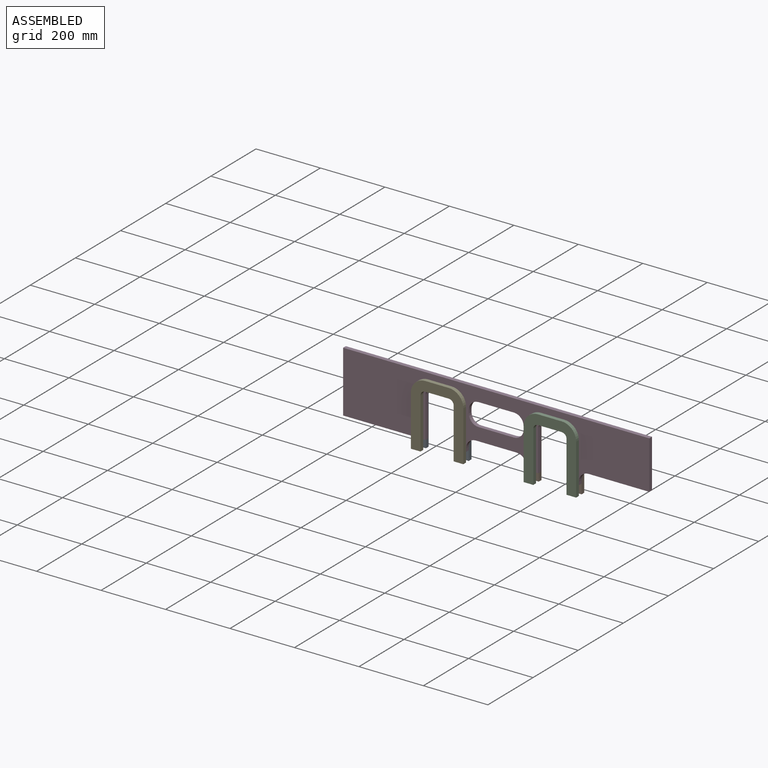
[diagram: assembled view]
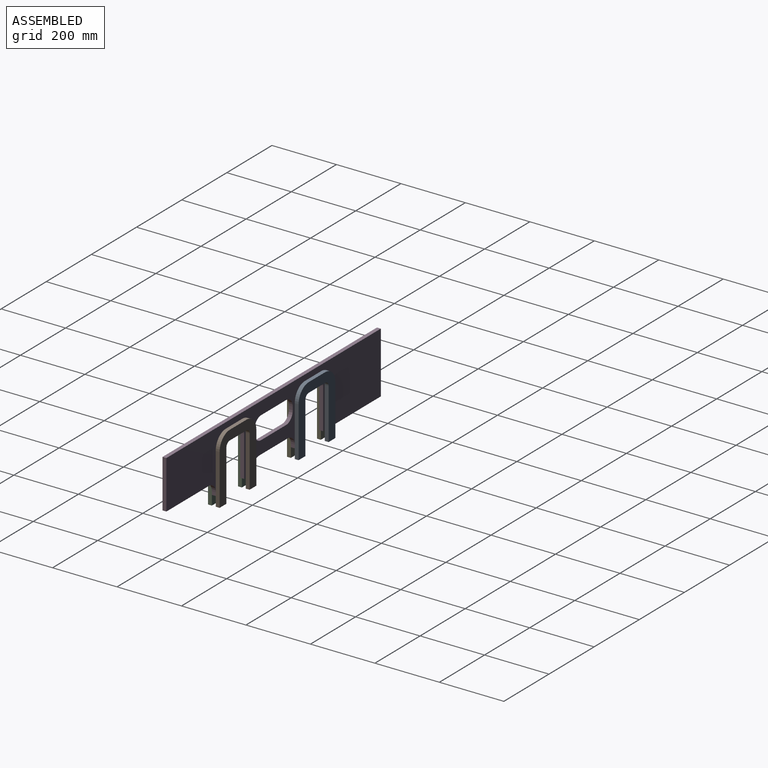
[diagram: assembled view, second angle]
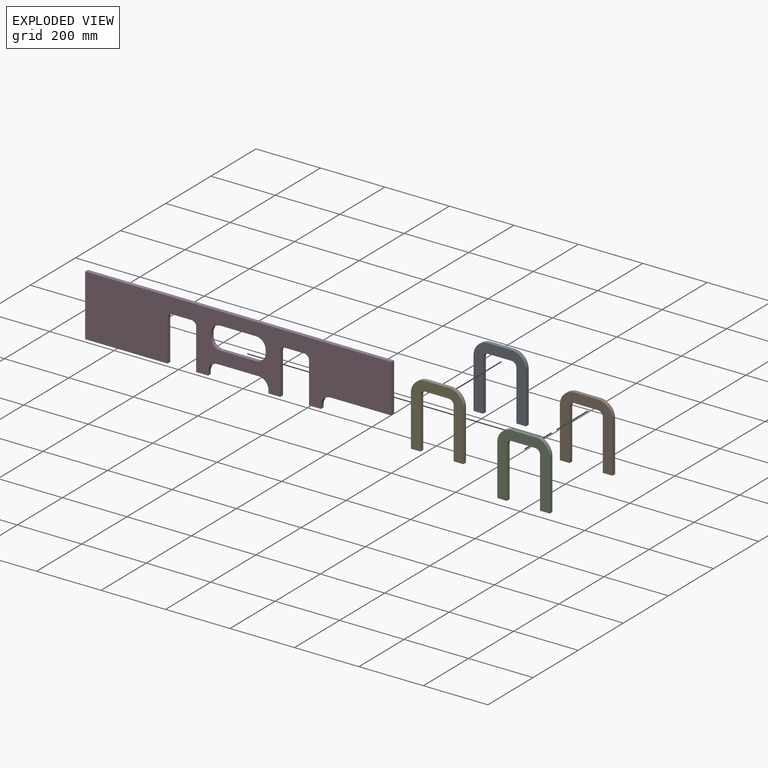
[diagram: exploded view]
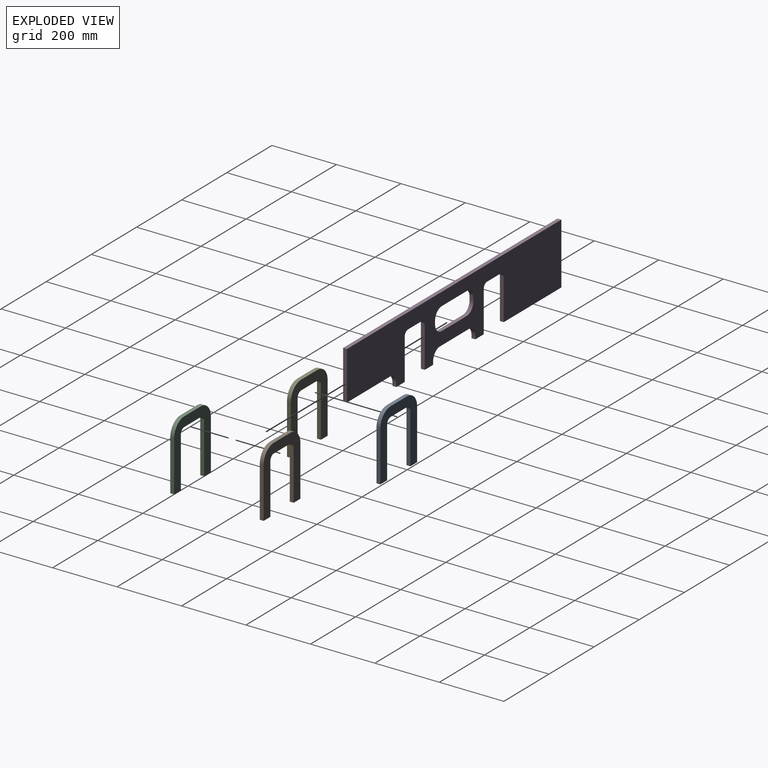
[diagram: exploded view, second angle]
ASSEMBLY  parts=5 mates=4
PART A: 14 faces, bbox 162.9x12x201.8 mm
  f0: plane 156.79x12mm, normal (1,0,0), area 1881.4mm2, adj f1,f11,f12,f13
  f1: cylinder r=45mm len=45mm, axis (0,-1,0), area 848.2mm2, adj f0,f2,f12,f13
  f2: plane 72.9x12mm, normal (0,0,1), area 874.8mm2, adj f1,f3,f12,f13
  f3: cylinder r=45mm len=45mm, axis (0,-1,0), area 848.2mm2, adj f2,f4,f12,f13
  f4: plane 156.79x12mm, normal (-1,0,0), area 1881.4mm2, adj f3,f5,f12,f13
  f5: plane 30x12mm, normal (0,0,-1), area 360mm2, adj f4,f6,f12,f13
  f6: plane 156.79x12mm, normal (1,0,0), area 1881.4mm2, adj f5,f7,f12,f13
  f7: cylinder r=15mm len=15mm, axis (0,-1,0), area 282.7mm2, adj f6,f8,f12,f13
  f8: plane 72.9x12mm, normal (0,0,-1), area 874.8mm2, adj f7,f9,f12,f13
  f9: cylinder r=15mm len=15mm, axis (0,-1,0), area 282.7mm2, adj f8,f10,f12,f13
  f10: plane 156.79x12mm, normal (-1,0,0), area 1881.4mm2, adj f9,f11,f12,f13
  f11: plane 30x12mm, normal (0,0,-1), area 360mm2, adj f0,f10,f12,f13
  f12: plane 201.79x162.9mm, normal (0,1,0), area 14421.6mm2, adj f0,f1,f2,f3,f4,f5,f6,f7
  f13: plane 201.79x162.9mm, normal (0,-1,0), area 14421.6mm2, adj f0,f1,f2,f3,f4,f5,f6,f7
PART B: same geometry as A
PART C: same geometry as A
PART D: 35 faces, bbox 950x12x190 mm
  f0: plane 110x12mm, normal (0,0,1), area 1320mm2, adj f1,f32,f33,f34
  f1: cylinder r=30mm len=30mm, axis (0,1,0), area 565.5mm2, adj f0,f2,f33,f34
  f2: plane 12x10mm, normal (1,0,0), area 120mm2, adj f1,f3,f33,f34
  f3: cylinder r=30mm len=30mm, axis (0,1,0), area 565.5mm2, adj f2,f4,f33,f34
  f4: plane 110x12mm, normal (0,0,-1), area 1320mm2, adj f3,f5,f33,f34
  f5: cylinder r=30mm len=30mm, axis (0,1,0), area 565.5mm2, adj f4,f6,f33,f34
  f6: plane 12x10mm, normal (-1,0,0), area 120mm2, adj f5,f32,f33,f34
  f7: plane 190x12mm, normal (-1,0,0), area 2280mm2, adj f8,f31,f33,f34
  f8: plane 255.55x12mm, normal (0,0,-1), area 3066.6mm2, adj f7,f9,f33,f34
  f9: plane 126.79x12mm, normal (1,0,0), area 1521.4mm2, adj f8,f10,f33,f34
  f10: cylinder r=15mm len=15mm, axis (0,1,0), area 282.7mm2, adj f9,f11,f33,f34
  f11: plane 58.9x12mm, normal (0,0,-1), area 706.8mm2, adj f10,f12,f33,f34
  f12: cylinder r=15mm len=15mm, axis (0,1,0), area 282.7mm2, adj f11,f13,f33,f34
  f13: plane 126.79x12mm, normal (-1,0,0), area 1521.4mm2, adj f12,f14,f33,f34
  f14: plane 37x12mm, normal (0,0,-1), area 444mm2, adj f13,f15,f33,f34
  f15: plane 12x10mm, normal (1,0,0), area 120mm2, adj f14,f16,f33,f34
  f16: cylinder r=30mm len=30mm, axis (0,1,0), area 565.5mm2, adj f15,f17,f33,f34
  f17: plane 127.1x12mm, normal (0,0,-1), area 1525.2mm2, adj f16,f18,f33,f34
  f18: cylinder r=30mm len=30mm, axis (0,1,0), area 565.5mm2, adj f17,f19,f33,f34
  f19: plane 12x10mm, normal (-1,0,0), area 120mm2, adj f18,f20,f33,f34
  f20: plane 37x12mm, normal (0,0,-1), area 444mm2, adj f19,f21,f33,f34
  f21: plane 126.79x12mm, normal (1,0,0), area 1521.4mm2, adj f20,f22,f33,f34
  f22: cylinder r=15mm len=15mm, axis (0,1,0), area 282.7mm2, adj f21,f23,f33,f34
  f23: plane 58.9x12mm, normal (0,0,-1), area 706.8mm2, adj f22,f24,f33,f34
  f24: cylinder r=15mm len=15mm, axis (0,1,0), area 282.7mm2, adj f23,f25,f33,f34
  f25: plane 126.79x12mm, normal (-1,0,0), area 1521.4mm2, adj f24,f26,f33,f34
  f26: plane 37x12mm, normal (0,0,-1), area 444mm2, adj f25,f27,f33,f34
  f27: plane 12x10mm, normal (1,0,0), area 120mm2, adj f26,f28,f33,f34
  f28: cylinder r=30mm len=30mm, axis (0,1,0), area 565.5mm2, adj f27,f29,f33,f34
  f29: plane 188.55x12mm, normal (0,0,-1), area 2262.6mm2, adj f28,f30,f33,f34
  f30: plane 150x12mm, normal (1,0,0), area 1800mm2, adj f29,f31,f33,f34
  f31: plane 950x12mm, normal (0,0,1), area 11400mm2, adj f7,f30,f33,f34
  f32: cylinder r=30mm len=30mm, axis (0,1,0), area 565.5mm2, adj f0,f6,f33,f34
  f33: plane 950x190mm, normal (0,-1,0), area 128709.6mm2, adj f0,f1,f2,f3,f4,f5,f6,f7
  f34: plane 950x190mm, normal (0,1,0), area 128709.6mm2, adj f0,f1,f2,f3,f4,f5,f6,f7
PART E: same geometry as A
PLACE A t=(-222.19,-52.69,-19.39)mm
PLACE B t=(127.81,-52.69,-19.39)mm
PLACE C t=(127.81,-76.69,-19.39)mm
PLACE D t=(-222.19,-52.69,-19.39)mm
PLACE E rot(axis=(0,0,1),180deg) t=(-466.05,-64.69,-19.39)mm
MATE fastened B.f13 <-> D.f34  axis (0,-1,0) through (5.88,-52.69,105.2)mm
MATE fastened A.f13 <-> D.f34  axis (0,-1,0) through (-344.12,-52.69,105.2)mm
MATE fastened E.f13 <-> D.f33  axis (0,1,0) through (-344.12,-64.69,105.2)mm
MATE fastened C.f12 <-> D.f33  axis (0,1,0) through (5.88,-64.69,105.2)mm
